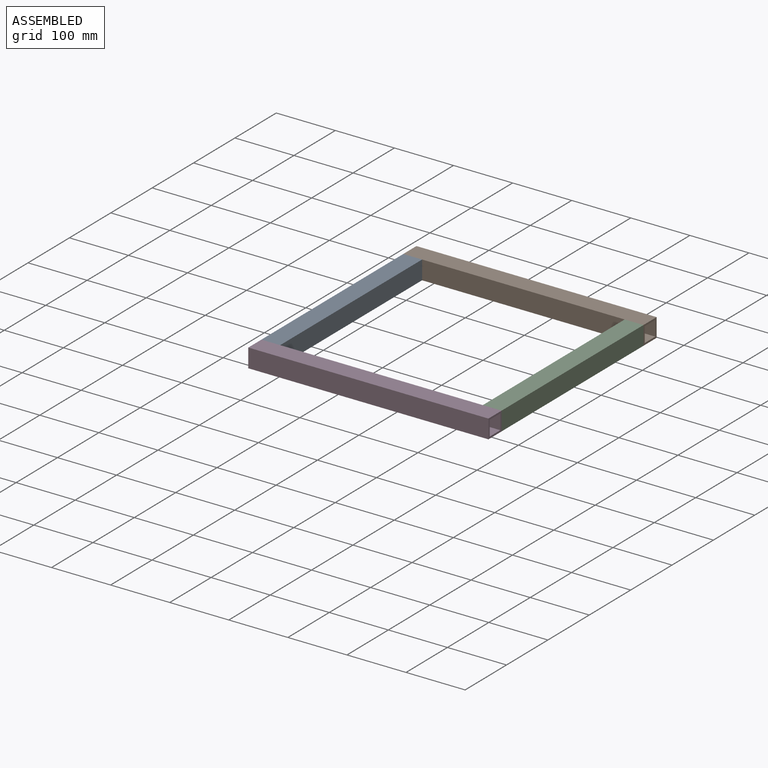
[diagram: assembled view]
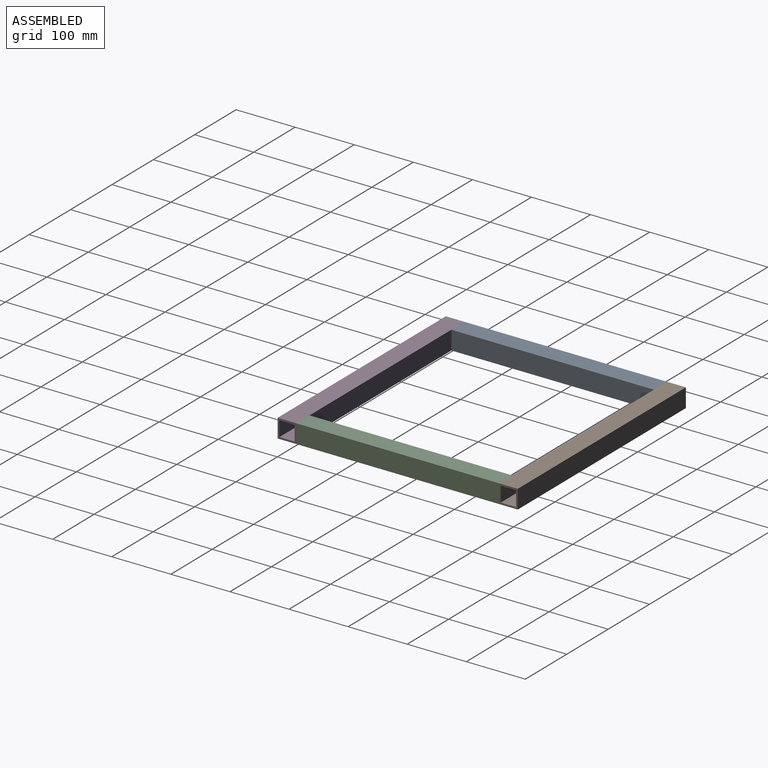
[diagram: assembled view, second angle]
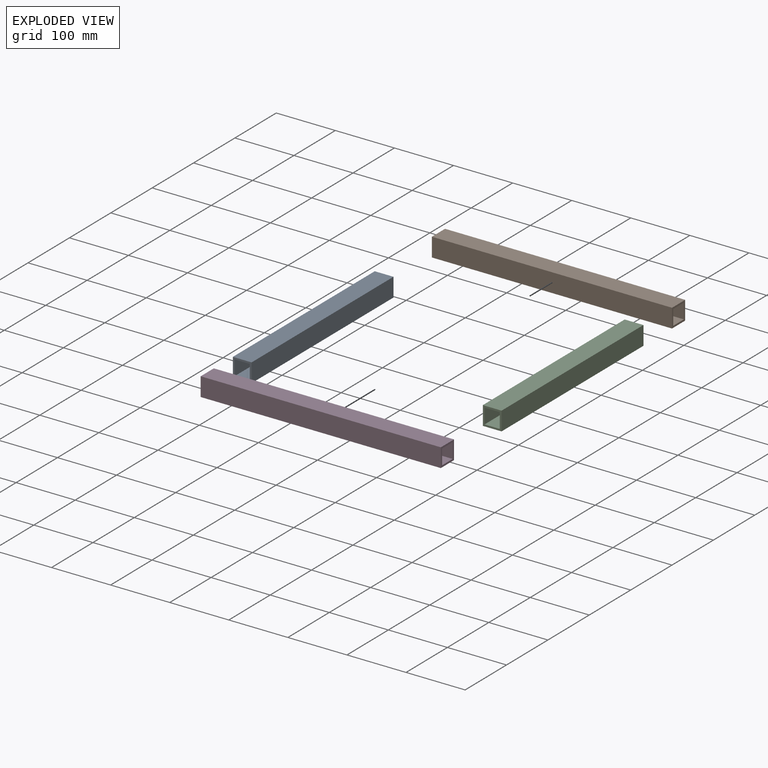
[diagram: exploded view]
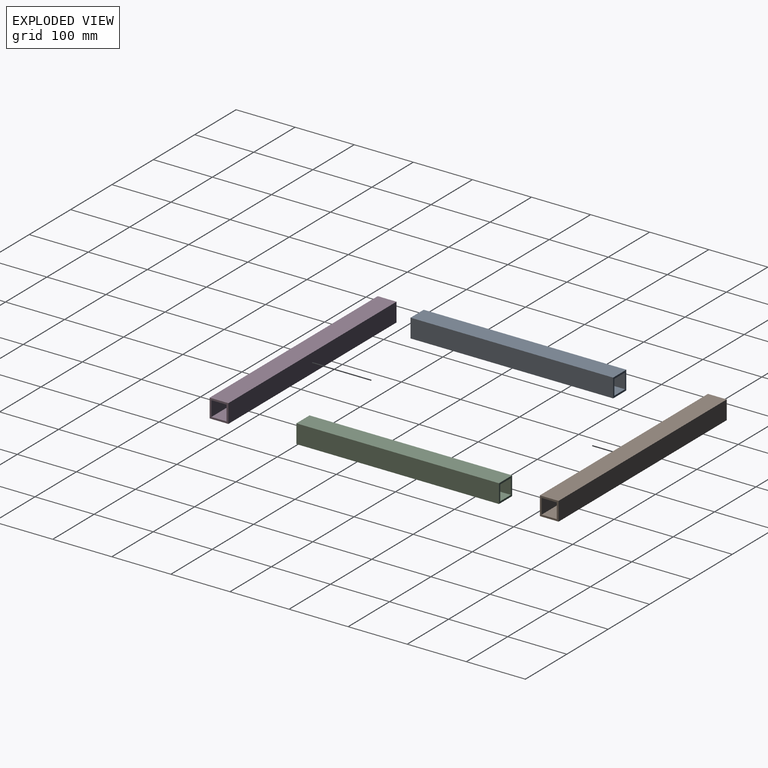
[diagram: exploded view, second angle]
ASSEMBLY  parts=4 mates=3
PART A: 10 faces, bbox 31.8x342.9x31.8 mm
  f0: plane 342.9x25.65mm, normal (-1,0,0), area 8796.8mm2, adj f1,f7,f8,f9
  f1: plane 342.9x25.65mm, normal (0,0,1), area 8796.8mm2, adj f0,f2,f8,f9
  f2: plane 342.9x25.65mm, normal (1,0,0), area 8796.8mm2, adj f1,f7,f8,f9
  f3: plane 342.9x31.75mm, normal (1,0,0), area 10887.1mm2, adj f4,f6,f8,f9
  f4: plane 342.9x31.75mm, normal (0,0,1), area 10887.1mm2, adj f3,f5,f8,f9
  f5: plane 342.9x31.75mm, normal (-1,0,0), area 10887.1mm2, adj f4,f6,f8,f9
  f6: plane 342.9x31.75mm, normal (0,0,-1), area 10887.1mm2, adj f3,f5,f8,f9
  f7: plane 342.9x25.65mm, normal (0,0,-1), area 8796.8mm2, adj f0,f2,f8,f9
  f8: plane 31.75x31.75mm, normal (0,-1,0), area 349.9mm2, adj f0,f1,f2,f3,f4,f5,f6,f7
  f9: plane 31.75x31.75mm, normal (0,1,0), area 349.9mm2, adj f0,f1,f2,f3,f4,f5,f6,f7
PART B: 10 faces, bbox 406.4x31.8x31.8 mm
  f0: plane 406.4x25.65mm, normal (0,1,0), area 10425.8mm2, adj f1,f7,f8,f9
  f1: plane 406.4x25.65mm, normal (0,0,1), area 10425.8mm2, adj f0,f2,f8,f9
  f2: plane 406.4x25.65mm, normal (0,-1,0), area 10425.8mm2, adj f1,f7,f8,f9
  f3: plane 406.4x31.75mm, normal (0,-1,0), area 12903.2mm2, adj f4,f6,f8,f9
  f4: plane 406.4x31.75mm, normal (0,0,1), area 12903.2mm2, adj f3,f5,f8,f9
  f5: plane 406.4x31.75mm, normal (0,1,0), area 12903.2mm2, adj f4,f6,f8,f9
  f6: plane 406.4x31.75mm, normal (0,0,-1), area 12903.2mm2, adj f3,f5,f8,f9
  f7: plane 406.4x25.65mm, normal (0,0,-1), area 10425.8mm2, adj f0,f2,f8,f9
  f8: plane 31.75x31.75mm, normal (-1,0,0), area 349.9mm2, adj f0,f1,f2,f3,f4,f5,f6,f7
  f9: plane 31.75x31.75mm, normal (1,0,0), area 349.9mm2, adj f0,f1,f2,f3,f4,f5,f6,f7
PART C: same geometry as A
PART D: same geometry as B
PLACE A t=(-324.82,251.23,-160.32)mm
PLACE B t=(-324.82,689.38,-160.32)mm
PLACE C t=(49.83,251.23,-160.32)mm
PLACE D t=(-324.82,314.73,-160.32)mm
MATE fastened C.f8 <-> D.f5  axis (0,-1,0) through (65.7,-91.67,-144.44)mm
MATE fastened A.f8 <-> D.f5  axis (0,-1,0) through (-340.7,-91.67,-144.44)mm
MATE fastened C.f9 <-> B.f3  axis (0,1,0) through (65.7,251.23,-144.44)mm
